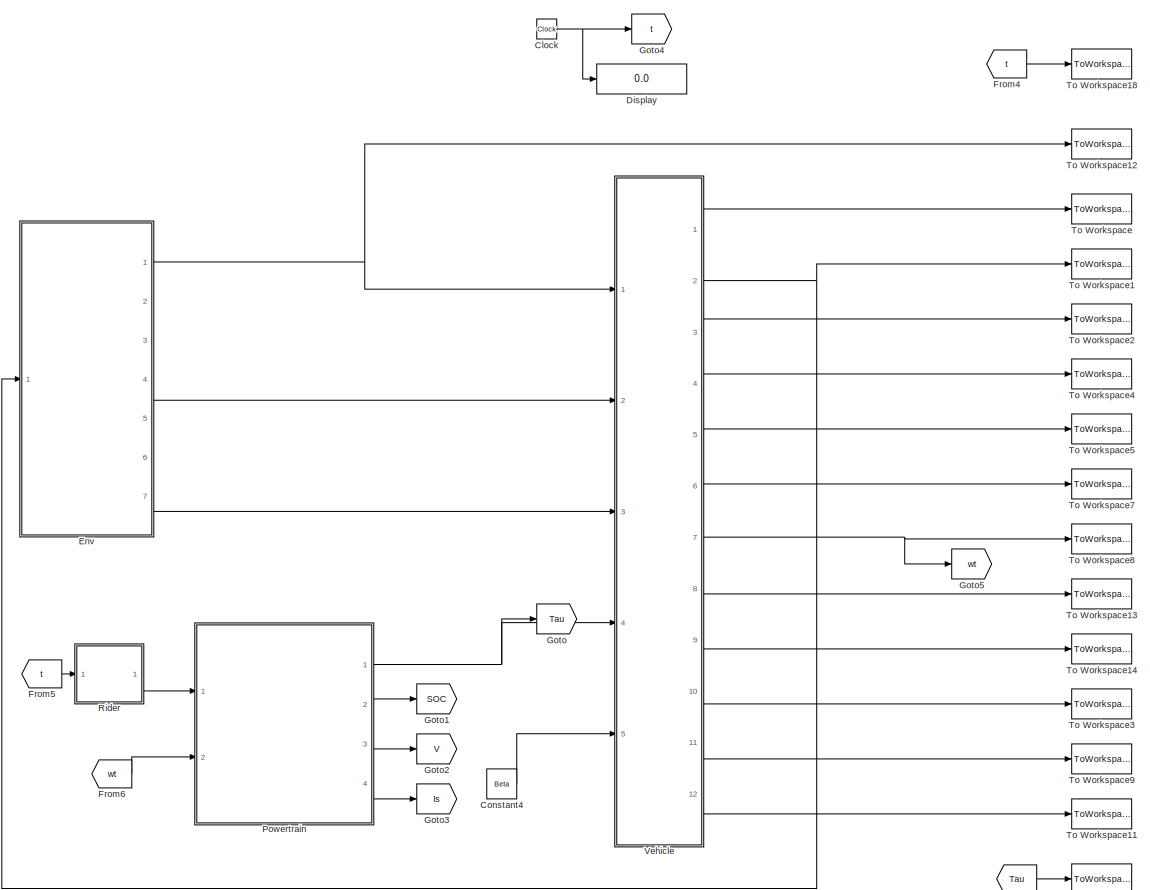
[diagram: root canvas - part 1/2, most of the canvas]
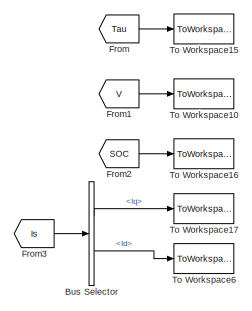
[diagram: root canvas - part 2/2, bottom right region]
MODEL slx_bd638649054d
KIND model
BLOCK [BusSelector] Bus Selector
  OutputSignals = Iq,Id
  Ports = [1, 2]
BLOCK [Clock] Clock
BLOCK [Constant] Constant4
  Value = Beta
BLOCK [Display] Display
  Decimation = 1
  Ports = [1]
BLOCK [ModelReference] Env
  CopyOfModelName = Environment_TRC.slx
  DefaultDataLogging = on
  ModelNameDialog = Environment_TRC.slx
  ModelReferenceVersion = 1.17
  Ports = [1, 7]
BLOCK [From] From
  GotoTag = Tau
BLOCK [From] From1
  GotoTag = V
BLOCK [From] From2
  GotoTag = SOC
BLOCK [From] From3
  GotoTag = Is
BLOCK [From] From4
  GotoTag = t
BLOCK [From] From5
  GotoTag = t
BLOCK [From] From6
  GotoTag = wt
BLOCK [Goto] Goto
  GotoTag = Tau
BLOCK [Goto] Goto1
  GotoTag = SOC
BLOCK [Goto] Goto2
  GotoTag = V
BLOCK [Goto] Goto3
  GotoTag = Is
BLOCK [Goto] Goto4
  GotoTag = t
BLOCK [Goto] Goto5
  GotoTag = wt
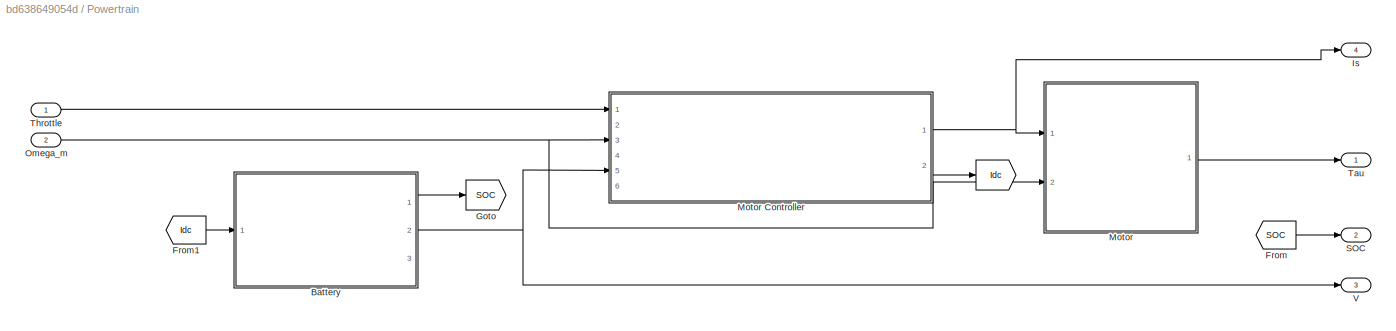
BLOCK [SubSystem] Powertrain
  Ports = [2, 4]
  RequestExecContextInheritance = off
BLOCK [Goto] Powertrain/ 
  GotoTag = Idc
BLOCK [ModelReference] Powertrain/Battery
  CopyOfModelName = Battery_pack.slx
  DefaultDataLogging = on
  ModelNameDialog = Battery_pack.slx
  ModelReferenceVersion = 1.25
  Ports = [1, 3]
BLOCK [From] Powertrain/From
  GotoTag = SOC
BLOCK [From] Powertrain/From1
  GotoTag = Idc
BLOCK [Goto] Powertrain/Goto
  GotoTag = SOC
BLOCK [Outport] Powertrain/Is
  IconDisplay = Port number
  Port = 4
BLOCK [ModelReference] Powertrain/Motor
  CopyOfModelName = Motor.slx
  DefaultDataLogging = on
  ModelNameDialog = Motor.slx
  ModelReferenceVersion = 1.40
  Ports = [2, 1]
BLOCK [ModelReference] Powertrain/Motor Controller
  CopyOfModelName = Motor_controller.slx
  DefaultDataLogging = on
  ModelNameDialog = Motor_controller.slx
  ModelReferenceVersion = 1.13
  Ports = [6, 2]
BLOCK [Inport] Powertrain/Omega_m
  IconDisplay = Port number
  Port = 2
BLOCK [Outport] Powertrain/SOC
  IconDisplay = Port number
  Port = 2
BLOCK [Outport] Powertrain/Tau
  IconDisplay = Port number
BLOCK [Inport] Powertrain/Throttle
  IconDisplay = Port number
BLOCK [Outport] Powertrain/V
  IconDisplay = Port number
  Port = 3
BLOCK [ModelReference] Rider
  CopyOfModelName = Rider_TRC.slx
  DefaultDataLogging = on
  ModelNameDialog = Rider_TRC.slx
  ModelReferenceVersion = 1.3
  Ports = [1, 1]
BLOCK [ToWorkspace] To Workspace
  MaxDataPoints = inf
  Ports = [1]
  SampleTime = -1
  VariableName = v
BLOCK [ToWorkspace] To Workspace1
  MaxDataPoints = inf
  Ports = [1]
  SampleTime = -1
  VariableName = d
BLOCK [ToWorkspace] To Workspace10
  MaxDataPoints = inf
  Ports = [1]
  SampleTime = -1
  VariableName = V
BLOCK [ToWorkspace] To Workspace11
  MaxDataPoints = inf
  Ports = [1]
  SampleTime = -1
  VariableName = Fmax
BLOCK [ToWorkspace] To Workspace12
  MaxDataPoints = inf
  Ports = [1]
  SampleTime = -1
  VariableName = Or
BLOCK [ToWorkspace] To Workspace13
  MaxDataPoints = inf
  Ports = [1]
  SampleTime = -1
  VariableName = Tg
BLOCK [ToWorkspace] To Workspace14
  MaxDataPoints = inf
  Ports = [1]
  SampleTime = -1
  VariableName = Fn
BLOCK [ToWorkspace] To Workspace15
  MaxDataPoints = inf
  Ports = [1]
  SampleTime = -1
  VariableName = Tm
BLOCK [ToWorkspace] To Workspace16
  MaxDataPoints = inf
  Ports = [1]
  SampleTime = -1
  VariableName = SOC
BLOCK [ToWorkspace] To Workspace17
  MaxDataPoints = inf
  Ports = [1]
  SampleTime = -1
  VariableName = Iq
BLOCK [ToWorkspace] To Workspace18
  MaxDataPoints = inf
  Ports = [1]
  SampleTime = -1
  VariableName = t
BLOCK [ToWorkspace] To Workspace2
  MaxDataPoints = inf
  Ports = [1]
  SampleTime = -1
  VariableName = Ol
BLOCK [ToWorkspace] To Workspace3
  MaxDataPoints = inf
  Ports = [1]
  SampleTime = -1
  VariableName = Tr
BLOCK [ToWorkspace] To Workspace4
  MaxDataPoints = inf
  Ports = [1]
  SampleTime = -1
  VariableName = ks
BLOCK [ToWorkspace] To Workspace5
  MaxDataPoints = inf
  Ports = [1]
  SampleTime = -1
  VariableName = Tt
BLOCK [ToWorkspace] To Workspace6
  MaxDataPoints = inf
  Ports = [1]
  SampleTime = -1
  VariableName = Id
BLOCK [ToWorkspace] To Workspace7
  MaxDataPoints = inf
  Ports = [1]
  SampleTime = -1
  VariableName = Ft
BLOCK [ToWorkspace] To Workspace8
  MaxDataPoints = inf
  Ports = [1]
  SampleTime = -1
  VariableName = wt
BLOCK [ToWorkspace] To Workspace9
  MaxDataPoints = inf
  Ports = [1]
  SampleTime = -1
  VariableName = Ta
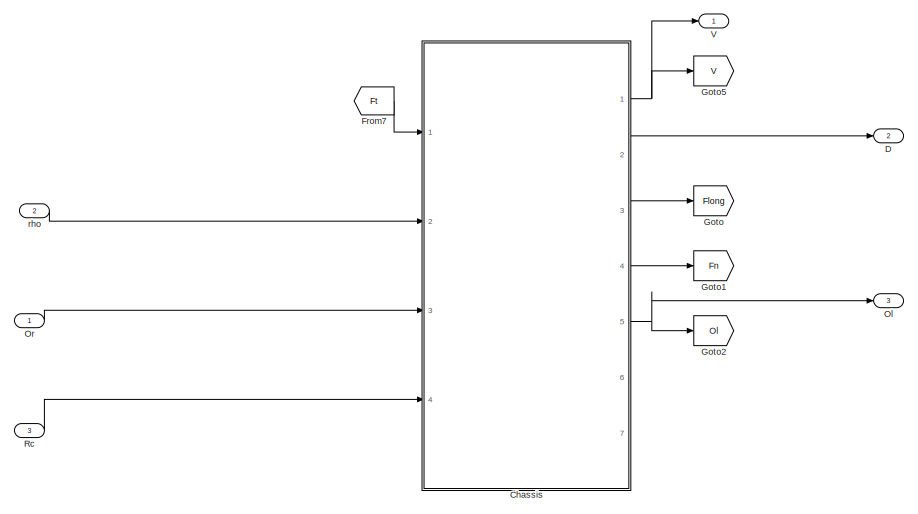
[diagram: Vehicle - part 1/2, full width, top band]
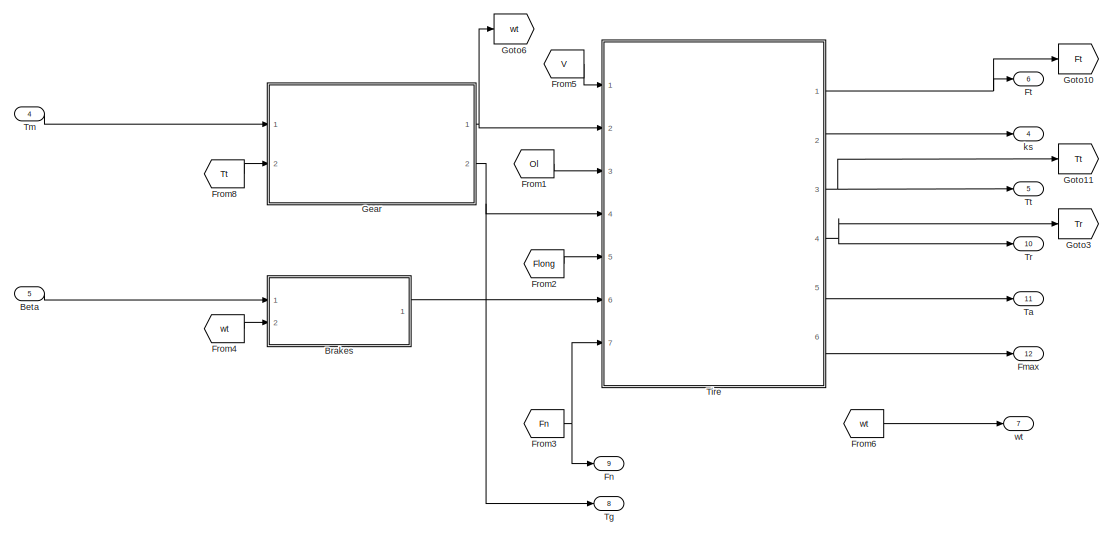
[diagram: Vehicle - part 2/2, full width, bottom band]
BLOCK [SubSystem] Vehicle
  Ports = [5, 12]
  RequestExecContextInheritance = off
BLOCK [Inport] Vehicle/Beta
  IconDisplay = Port number
  Port = 5
BLOCK [ModelReference] Vehicle/Brakes
  CopyOfModelName = Brakes.slx
  DefaultDataLogging = on
  ModelNameDialog = Brakes.slx
  ModelReferenceVersion = 1.6
  Ports = [2, 1]
BLOCK [ModelReference] Vehicle/Chassis
  CopyOfModelName = Chassis.slx
  DefaultDataLogging = on
  ModelNameDialog = Chassis.slx
  ModelReferenceVersion = 1.17
  Ports = [4, 7]
BLOCK [Outport] Vehicle/D
  IconDisplay = Port number
  Port = 2
BLOCK [Outport] Vehicle/Fmax 
  IconDisplay = Port number
  Port = 12
BLOCK [Outport] Vehicle/Fn
  IconDisplay = Port number
  Port = 9
BLOCK [From] Vehicle/From1
  GotoTag = Ol
BLOCK [From] Vehicle/From2
  GotoTag = Flong
BLOCK [From] Vehicle/From3
  GotoTag = Fn
BLOCK [From] Vehicle/From4
  GotoTag = wt
BLOCK [From] Vehicle/From5
  GotoTag = V
BLOCK [From] Vehicle/From6
  GotoTag = wt
BLOCK [From] Vehicle/From7
  GotoTag = Ft
BLOCK [From] Vehicle/From8
  GotoTag = Tt
BLOCK [Outport] Vehicle/Ft
  IconDisplay = Port number
  Port = 6
BLOCK [ModelReference] Vehicle/Gear
  CopyOfModelName = Gear_Chain.slx
  DefaultDataLogging = on
  ModelNameDialog = Gear_Chain.slx
  ModelReferenceVersion = 1.16
  Ports = [2, 2]
BLOCK [Goto] Vehicle/Goto
  GotoTag = Flong
BLOCK [Goto] Vehicle/Goto1
  GotoTag = Fn
BLOCK [Goto] Vehicle/Goto10
  GotoTag = Ft
BLOCK [Goto] Vehicle/Goto11
  GotoTag = Tt
BLOCK [Goto] Vehicle/Goto2
  GotoTag = Ol
BLOCK [Goto] Vehicle/Goto3
  GotoTag = Tr
BLOCK [Goto] Vehicle/Goto5
  GotoTag = V
BLOCK [Goto] Vehicle/Goto6
  GotoTag = wt
BLOCK [Outport] Vehicle/Ol
  IconDisplay = Port number
  Port = 3
BLOCK [Inport] Vehicle/Or
  IconDisplay = Port number
BLOCK [Inport] Vehicle/Rc
  IconDisplay = Port number
  Port = 3
BLOCK [Outport] Vehicle/Ta
  IconDisplay = Port number
  Port = 11
BLOCK [Outport] Vehicle/Tg
  IconDisplay = Port number
  Port = 8
BLOCK [ModelReference] Vehicle/Tire
  CopyOfModelName = Tires.slx
  DefaultDataLogging = on
  ModelNameDialog = Tires.slx
  ModelReferenceVersion = 1.78
  Ports = [7, 6]
BLOCK [Inport] Vehicle/Tm
  IconDisplay = Port number
  Port = 4
BLOCK [Outport] Vehicle/Tr
  IconDisplay = Port number
  Port = 10
BLOCK [Outport] Vehicle/Tt
  IconDisplay = Port number
  Port = 5
BLOCK [Outport] Vehicle/V
  IconDisplay = Port number
BLOCK [Outport] Vehicle/ks
  IconDisplay = Port number
  Port = 4
BLOCK [Inport] Vehicle/rho
  IconDisplay = Port number
  Port = 2
BLOCK [Outport] Vehicle/wt
  IconDisplay = Port number
  Port = 7
LINE Bus Selector:1 -> To Workspace17:1
LINE Bus Selector:2 -> To Workspace6:1
NET Clock:1 -> Display:1, Goto4:1
LINE Constant4:1 -> Vehicle:5
NET Env:1 -> To Workspace12:1, Vehicle:1
LINE Env:4 -> Vehicle:2
LINE Env:7 -> Vehicle:3
LINE From1:1 -> To Workspace10:1
LINE From2:1 -> To Workspace16:1
LINE From3:1 -> Bus Selector:1
LINE From4:1 -> To Workspace18:1
LINE From5:1 -> Rider:1
LINE From6:1 -> Powertrain:2
LINE From:1 -> To Workspace15:1
LINE Powertrain/Battery:1 -> Powertrain/Goto:1
NET Powertrain/Battery:2 -> Powertrain/Motor Controller:5, Powertrain/V:1
LINE Powertrain/From1:1 -> Powertrain/Battery:1
LINE Powertrain/From:1 -> Powertrain/SOC:1
NET Powertrain/Motor Controller:1 -> Powertrain/Is:1, Powertrain/Motor:1
LINE Powertrain/Motor Controller:2 -> Powertrain/ :1
LINE Powertrain/Motor:1 -> Powertrain/Tau:1
NET Powertrain/Omega_m:1 -> Powertrain/Motor Controller:3, Powertrain/Motor:2
LINE Powertrain/Throttle:1 -> Powertrain/Motor Controller:1
NET Powertrain:1 -> Goto:1, Vehicle:4
LINE Powertrain:2 -> Goto1:1
LINE Powertrain:3 -> Goto2:1
LINE Powertrain:4 -> Goto3:1
LINE Rider:1 -> Powertrain:1
LINE Vehicle/Beta:1 -> Vehicle/Brakes:1
LINE Vehicle/Brakes:1 -> Vehicle/Tire:6
NET Vehicle/Chassis:1 -> Vehicle/Goto5:1, Vehicle/V:1
LINE Vehicle/Chassis:2 -> Vehicle/D:1
LINE Vehicle/Chassis:3 -> Vehicle/Goto:1
LINE Vehicle/Chassis:4 -> Vehicle/Goto1:1
NET Vehicle/Chassis:5 -> Vehicle/Goto2:1, Vehicle/Ol:1
LINE Vehicle/From1:1 -> Vehicle/Tire:3
LINE Vehicle/From2:1 -> Vehicle/Tire:5
NET Vehicle/From3:1 -> Vehicle/Fn:1, Vehicle/Tire:7
LINE Vehicle/From4:1 -> Vehicle/Brakes:2
LINE Vehicle/From5:1 -> Vehicle/Tire:1
LINE Vehicle/From6:1 -> Vehicle/wt:1
LINE Vehicle/From7:1 -> Vehicle/Chassis:1
LINE Vehicle/From8:1 -> Vehicle/Gear:2
NET Vehicle/Gear:1 -> Vehicle/Goto6:1, Vehicle/Tire:2
NET Vehicle/Gear:2 -> Vehicle/Tg:1, Vehicle/Tire:4
LINE Vehicle/Or:1 -> Vehicle/Chassis:3
LINE Vehicle/Rc:1 -> Vehicle/Chassis:4
NET Vehicle/Tire:1 -> Vehicle/Ft:1, Vehicle/Goto10:1
LINE Vehicle/Tire:2 -> Vehicle/ks:1
NET Vehicle/Tire:3 -> Vehicle/Goto11:1, Vehicle/Tt:1
NET Vehicle/Tire:4 -> Vehicle/Goto3:1, Vehicle/Tr:1
LINE Vehicle/Tire:5 -> Vehicle/Ta:1
LINE Vehicle/Tire:6 -> Vehicle/Fmax :1
LINE Vehicle/Tm:1 -> Vehicle/Gear:1
LINE Vehicle/rho:1 -> Vehicle/Chassis:2
LINE Vehicle:1 -> To Workspace:1
LINE Vehicle:10 -> To Workspace3:1
LINE Vehicle:11 -> To Workspace9:1
LINE Vehicle:12 -> To Workspace11:1
NET Vehicle:2 -> Env:1, To Workspace1:1
LINE Vehicle:3 -> To Workspace2:1
LINE Vehicle:4 -> To Workspace4:1
LINE Vehicle:5 -> To Workspace5:1
LINE Vehicle:6 -> To Workspace7:1
NET Vehicle:7 -> Goto5:1, To Workspace8:1
LINE Vehicle:8 -> To Workspace13:1
LINE Vehicle:9 -> To Workspace14:1
note: NET lines group one-source signal fan-out (src -> all destinations, sorted); 1:1 wires keep LINE
